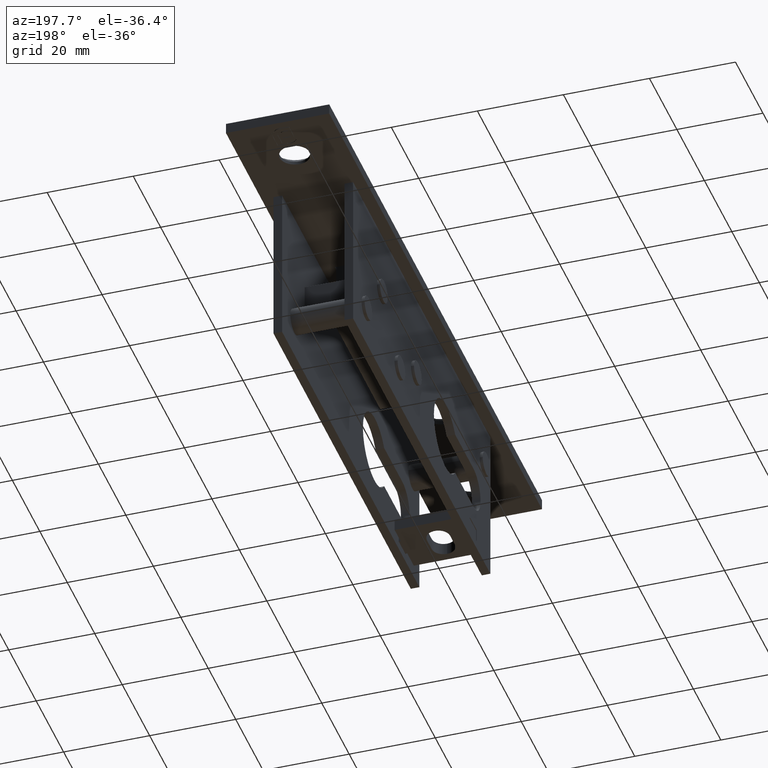
[diagram: clean part render]
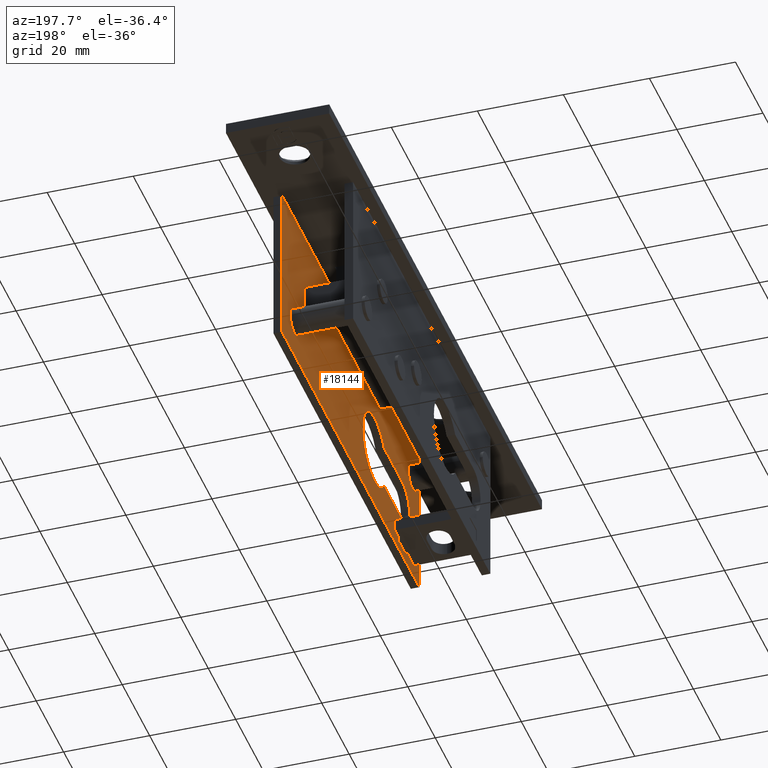
[diagram: same view with one face highlighted and labeled with its STEP entity id]
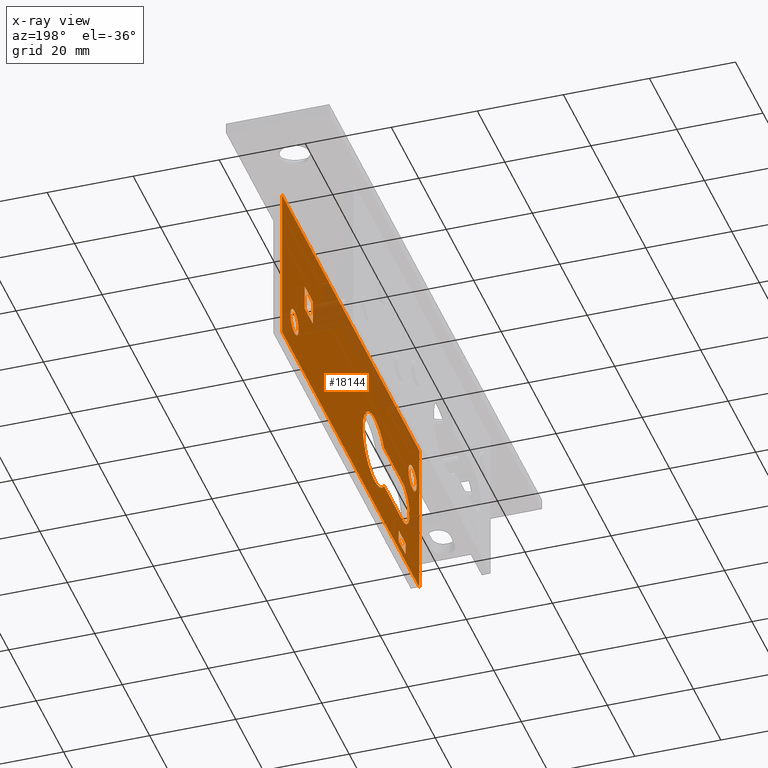
[diagram: x-ray of the same camera — body ghosted, the highlighted face saturated]
A machine part, auxiliary view. The second image highlights one B-rep face of the part: STEP entity #18144.
The next image is the same camera in x-ray: the body ghosted, the highlighted face saturated — about 16% of this face is hidden behind the body in this view.
In plain terms, the highlighted planar face has unit normal (1, -0, 0).
Its self-contained STEP definition (entity closure, byte-faithful):
#152 = CIRCLE ( 'NONE', #12427, 8.650000000000000355 ) ;
#184 = EDGE_CURVE ( 'NONE', #2701, #15351, #1096, .T. ) ;
#207 = EDGE_CURVE ( 'NONE', #1612, #3604, #4358, .T. ) ;
#322 = ORIENTED_EDGE ( 'NONE', *, *, #11432, .F. ) ;
#368 = FACE_BOUND ( 'NONE', #3559, .T. ) ;
#407 = DIRECTION ( 'NONE',  ( -1.214306433183764966E-16, -1.000000000000000000, 0.000000000000000000 ) ) ;
#410 = CARTESIAN_POINT ( 'NONE',  ( 7.250000000000009770, -36.10000000000000142, -22.50000000000000355 ) ) ;
#427 = CARTESIAN_POINT ( 'NONE',  ( 7.250000000000011546, -33.50000000000000000, -37.50000000000000000 ) ) ;
#657 = VERTEX_POINT ( 'NONE', #5468 ) ;
#837 = CARTESIAN_POINT ( 'NONE',  ( 7.250000000000022204, 51.50000000000000711, 0.000000000000000000 ) ) ;
#863 = VECTOR ( 'NONE', #14553, 1000.000000000000000 ) ;
#965 = CARTESIAN_POINT ( 'NONE',  ( 7.250000000000002665, -38.50000000000000000, -35.50000000000000000 ) ) ;
#1096 = CIRCLE ( 'NONE', #2872, 3.000000000000002665 ) ;
#1348 = CARTESIAN_POINT ( 'NONE',  ( 7.250000000000016875, 35.00000000000000000, -19.50000000000000355 ) ) ;
#1532 = CIRCLE ( 'NONE', #5693, 3.000000000000002665 ) ;
#1589 = CIRCLE ( 'NONE', #12317, 5.250000000000000888 ) ;
#1612 = VERTEX_POINT ( 'NONE', #2698 ) ;
#1798 = VERTEX_POINT ( 'NONE', #8832 ) ;
#1863 = ORIENTED_EDGE ( 'NONE', *, *, #4575, .F. ) ;
#1915 = DIRECTION ( 'NONE',  ( 0.000000000000000000, 0.000000000000000000, 1.000000000000000000 ) ) ;
#1938 = VECTOR ( 'NONE', #13416, 1000.000000000000000 ) ;
#2191 = EDGE_CURVE ( 'NONE', #12286, #15242, #7808, .T. ) ;
#2233 = VERTEX_POINT ( 'NONE', #965 ) ;
#2247 = VERTEX_POINT ( 'NONE', #7753 ) ;
#2332 = DIRECTION ( 'NONE',  ( -1.214306433183764966E-16, -1.000000000000000000, 0.000000000000000000 ) ) ;
#2486 = EDGE_LOOP ( 'NONE', ( #1863, #5505, #13505, #9110 ) ) ;
#2501 = DIRECTION ( 'NONE',  ( 0.000000000000000000, 0.000000000000000000, -1.000000000000000000 ) ) ;
#2502 = AXIS2_PLACEMENT_3D ( 'NONE', #16882, #10006, #9946 ) ;
#2605 = CARTESIAN_POINT ( 'NONE',  ( 7.250000000000022204, 51.50000000000000711, -37.50000000000000000 ) ) ;
#2635 = EDGE_LOOP ( 'NONE', ( #5516, #322, #14712, #17241 ) ) ;
#2698 = CARTESIAN_POINT ( 'NONE',  ( 7.250000000000009770, -48.50000000000000000, -37.50000000000000000 ) ) ;
#2701 = VERTEX_POINT ( 'NONE', #12048 ) ;
#2729 = DIRECTION ( 'NONE',  ( -1.000000000000000000, 1.214306433183764966E-16, -0.000000000000000000 ) ) ;
#2768 = DIRECTION ( 'NONE',  ( 1.002730332934570521E-16, 1.000000000000000000, 0.000000000000000000 ) ) ;
#2872 = AXIS2_PLACEMENT_3D ( 'NONE', #11812, #3430, #7699 ) ;
#3011 = EDGE_CURVE ( 'NONE', #11232, #4602, #11303, .T. ) ;
#3117 = ORIENTED_EDGE ( 'NONE', *, *, #9562, .F. ) ;
#3185 = CARTESIAN_POINT ( 'NONE',  ( 7.250000000000016875, 35.00000000000000000, -19.50000000000000000 ) ) ;
#3327 = EDGE_CURVE ( 'NONE', #10298, #13824, #15697, .T. ) ;
#3430 = DIRECTION ( 'NONE',  ( -1.000000000000000000, 1.214306433183764966E-16, -0.000000000000000000 ) ) ;
#3559 = EDGE_LOOP ( 'NONE', ( #5137, #3117 ) ) ;
#3601 = VERTEX_POINT ( 'NONE', #15381 ) ;
#3604 = VERTEX_POINT ( 'NONE', #8318 ) ;
#3634 = CARTESIAN_POINT ( 'NONE',  ( 7.250000000000010658, -38.49999999999999289, -37.50000000000020606 ) ) ;
#3872 = LINE ( 'NONE', #3634, #5397 ) ;
#4111 = FACE_BOUND ( 'NONE', #15836, .T. ) ;
#4126 = DIRECTION ( 'NONE',  ( 1.214306433183764966E-16, 1.000000000000000000, 0.000000000000000000 ) ) ;
#4241 = EDGE_CURVE ( 'NONE', #2247, #2233, #3872, .T. ) ;
#4313 = FACE_BOUND ( 'NONE', #2486, .T. ) ;
#4358 = LINE ( 'NONE', #13422, #17311 ) ;
#4564 = CARTESIAN_POINT ( 'NONE',  ( 7.250000000000022204, 51.50000000000000000, -32.49999999999987210 ) ) ;
#4575 = EDGE_CURVE ( 'NONE', #17969, #11221, #6252, .T. ) ;
#4602 = VERTEX_POINT ( 'NONE', #11699 ) ;
#4717 = CARTESIAN_POINT ( 'NONE',  ( 7.250000000000009770, -40.49999999999999289, -11.00000000000000000 ) ) ;
#4869 = CARTESIAN_POINT ( 'NONE',  ( 7.250000000000013323, -22.87459089691888536, -27.75000000000000355 ) ) ;
#4900 = ORIENTED_EDGE ( 'NONE', *, *, #8920, .T. ) ;
#5137 = ORIENTED_EDGE ( 'NONE', *, *, #10009, .F. ) ;
#5338 = PLANE ( 'NONE',  #7170 ) ;
#5397 = VECTOR ( 'NONE', #10428, 1000.000000000000000 ) ;
#5468 = CARTESIAN_POINT ( 'NONE',  ( 7.250000000000023981, 39.50000000000000000, -28.49999999999999645 ) ) ;
#5505 = ORIENTED_EDGE ( 'NONE', *, *, #17304, .F. ) ;
#5516 = ORIENTED_EDGE ( 'NONE', *, *, #2191, .T. ) ;
#5576 = DIRECTION ( 'NONE',  ( 0.000000000000000000, 1.000000000000000000, 0.000000000000000000 ) ) ;
#5693 = AXIS2_PLACEMENT_3D ( 'NONE', #9123, #10531, #12121 ) ;
#5939 = ORIENTED_EDGE ( 'NONE', *, *, #4241, .T. ) ;
#6095 = DIRECTION ( 'NONE',  ( 1.000000000000000000, -1.214306433183764966E-16, 0.000000000000000000 ) ) ;
#6120 = LINE ( 'NONE', #14724, #13847 ) ;
#6136 = CARTESIAN_POINT ( 'NONE',  ( 7.250000000000016875, 29.00000000000000355, -19.50000000000000000 ) ) ;
#6252 = LINE ( 'NONE', #8799, #16136 ) ;
#6423 = DIRECTION ( 'NONE',  ( 1.214306433183764966E-16, 1.000000000000000000, 0.000000000000000000 ) ) ;
#6518 = CARTESIAN_POINT ( 'NONE',  ( 7.250000000000015099, -16.00000000000000000, -22.50000000000000355 ) ) ;
#6581 = AXIS2_PLACEMENT_3D ( 'NONE', #7035, #2729, #5576 ) ;
#7035 = CARTESIAN_POINT ( 'NONE',  ( 7.250000000000023981, 42.50000000000000000, -28.49999999999999645 ) ) ;
#7170 = AXIS2_PLACEMENT_3D ( 'NONE', #2605, #8226, #4126 ) ;
#7428 = CIRCLE ( 'NONE', #6581, 3.000000000000002665 ) ;
#7699 = DIRECTION ( 'NONE',  ( 0.000000000000000000, 1.000000000000000000, 0.000000000000000000 ) ) ;
#7734 = CARTESIAN_POINT ( 'NONE',  ( 7.250000000000009770, -48.50000000000000000, 0.000000000000000000 ) ) ;
#7753 = CARTESIAN_POINT ( 'NONE',  ( 7.250000000000006217, -38.50000000000000711, -32.49999999999999289 ) ) ;
#7808 = LINE ( 'NONE', #837, #1938 ) ;
#8013 = VECTOR ( 'NONE', #11829, 1000.000000000000000 ) ;
#8226 = DIRECTION ( 'NONE',  ( 1.000000000000000000, -1.214306433183764966E-16, 0.000000000000000000 ) ) ;
#8318 = CARTESIAN_POINT ( 'NONE',  ( 7.250000000000022204, 51.50000000000000711, -37.50000000000000000 ) ) ;
#8537 = VERTEX_POINT ( 'NONE', #9506 ) ;
#8555 = CARTESIAN_POINT ( 'NONE',  ( 7.250000000000022204, 51.50000000000000711, -37.50000000000000000 ) ) ;
#8697 = LINE ( 'NONE', #13292, #11566 ) ;
#8786 = DIRECTION ( 'NONE',  ( -1.214306433183764966E-16, -1.000000000000000000, -1.387778780781444887E-15 ) ) ;
#8799 = CARTESIAN_POINT ( 'NONE',  ( 7.250000000000016875, 29.00000000000000355, -13.50000000000000178 ) ) ;
#8832 = CARTESIAN_POINT ( 'NONE',  ( 7.250000000000020428, 35.00000000000000000, -13.50000000000000533 ) ) ;
#8920 = EDGE_CURVE ( 'NONE', #13454, #8537, #13629, .T. ) ;
#9068 = DIRECTION ( 'NONE',  ( -0.000000000000000000, -0.000000000000000000, 1.000000000000000000 ) ) ;
#9110 = ORIENTED_EDGE ( 'NONE', *, *, #16093, .F. ) ;
#9123 = CARTESIAN_POINT ( 'NONE',  ( 7.250000000000009770, -43.50000000000000000, -11.00000000000000000 ) ) ;
#9506 = CARTESIAN_POINT ( 'NONE',  ( 7.250000000000015987, -7.350000000000000533, -22.50000000000000355 ) ) ;
#9549 = DIRECTION ( 'NONE',  ( 1.000000000000000000, -1.214306433183764966E-16, 0.000000000000000000 ) ) ;
#9562 = EDGE_CURVE ( 'NONE', #657, #3601, #12711, .T. ) ;
#9665 = EDGE_CURVE ( 'NONE', #2233, #11232, #9845, .T. ) ;
#9845 = LINE ( 'NONE', #13137, #863 ) ;
#9946 = DIRECTION ( 'NONE',  ( 0.000000000000000000, 1.000000000000000000, 0.000000000000000000 ) ) ;
#9997 = CARTESIAN_POINT ( 'NONE',  ( 7.250000000000006217, -36.10000000000000142, -17.25000000000000000 ) ) ;
#10006 = DIRECTION ( 'NONE',  ( -1.000000000000000000, 1.214306433183764966E-16, -0.000000000000000000 ) ) ;
#10009 = EDGE_CURVE ( 'NONE', #3601, #657, #7428, .T. ) ;
#10063 = LINE ( 'NONE', #15727, #10510 ) ;
#10223 = EDGE_CURVE ( 'NONE', #15351, #2701, #1532, .T. ) ;
#10246 = LINE ( 'NONE', #8555, #12011 ) ;
#10277 = DIRECTION ( 'NONE',  ( 1.652117596168387509E-16, 1.000000000000000000, 0.000000000000000000 ) ) ;
#10298 = VERTEX_POINT ( 'NONE', #12243 ) ;
#10428 = DIRECTION ( 'NONE',  ( 2.808647835564717055E-31, 2.312964634635741083E-15, -1.000000000000000000 ) ) ;
#10510 = VECTOR ( 'NONE', #16837, 1000.000000000000000 ) ;
#10531 = DIRECTION ( 'NONE',  ( -1.000000000000000000, 1.214306433183764966E-16, -0.000000000000000000 ) ) ;
#10601 = ORIENTED_EDGE ( 'NONE', *, *, #12357, .T. ) ;
#11221 = VERTEX_POINT ( 'NONE', #14663 ) ;
#11232 = VERTEX_POINT ( 'NONE', #14792 ) ;
#11303 = LINE ( 'NONE', #427, #8013 ) ;
#11432 = EDGE_CURVE ( 'NONE', #3604, #15242, #10246, .T. ) ;
#11566 = VECTOR ( 'NONE', #17504, 1000.000000000000000 ) ;
#11608 = ORIENTED_EDGE ( 'NONE', *, *, #10223, .F. ) ;
#11699 = CARTESIAN_POINT ( 'NONE',  ( 7.250000000000011546, -33.50000000000000000, -32.49999999999998579 ) ) ;
#11812 = CARTESIAN_POINT ( 'NONE',  ( 7.250000000000009770, -43.50000000000000000, -11.00000000000000000 ) ) ;
#11829 = DIRECTION ( 'NONE',  ( -0.000000000000000000, 0.000000000000000000, 1.000000000000000000 ) ) ;
#12011 = VECTOR ( 'NONE', #14221, 1000.000000000000000 ) ;
#12048 = CARTESIAN_POINT ( 'NONE',  ( 7.250000000000009770, -46.50000000000000000, -11.00000000000000000 ) ) ;
#12073 = CARTESIAN_POINT ( 'NONE',  ( 7.250000000000006217, -36.10000000000000142, -27.75000000000000355 ) ) ;
#12121 = DIRECTION ( 'NONE',  ( 0.000000000000000000, 1.000000000000000000, 0.000000000000000000 ) ) ;
#12131 = VECTOR ( 'NONE', #2501, 1000.000000000000000 ) ;
#12159 = CARTESIAN_POINT ( 'NONE',  ( 7.250000000000016875, 35.00000000000000000, -13.50000000000000178 ) ) ;
#12243 = CARTESIAN_POINT ( 'NONE',  ( 7.250000000000007994, -22.87459089691888181, -17.25000000000000000 ) ) ;
#12286 = VERTEX_POINT ( 'NONE', #7734 ) ;
#12317 = AXIS2_PLACEMENT_3D ( 'NONE', #410, #6095, #10277 ) ;
#12357 = EDGE_CURVE ( 'NONE', #8537, #10298, #152, .T. ) ;
#12427 = AXIS2_PLACEMENT_3D ( 'NONE', #6518, #16328, #15114 ) ;
#12573 = VERTEX_POINT ( 'NONE', #12073 ) ;
#12672 = LINE ( 'NONE', #4564, #13128 ) ;
#12711 = CIRCLE ( 'NONE', #2502, 3.000000000000002665 ) ;
#12835 = VECTOR ( 'NONE', #2332, 1000.000000000000000 ) ;
#13128 = VECTOR ( 'NONE', #8786, 1000.000000000000000 ) ;
#13137 = CARTESIAN_POINT ( 'NONE',  ( 7.250000000000022204, 51.50000000000000711, -35.50000000000000000 ) ) ;
#13292 = CARTESIAN_POINT ( 'NONE',  ( 7.250000000000022204, 51.50000000000000711, -27.75000000000000355 ) ) ;
#13374 = ORIENTED_EDGE ( 'NONE', *, *, #14394, .T. ) ;
#13416 = DIRECTION ( 'NONE',  ( 1.214306433183764966E-16, 1.000000000000000000, 0.000000000000000000 ) ) ;
#13422 = CARTESIAN_POINT ( 'NONE',  ( 7.250000000000022204, 51.50000000000000711, -37.50000000000000000 ) ) ;
#13454 = VERTEX_POINT ( 'NONE', #4869 ) ;
#13487 = EDGE_CURVE ( 'NONE', #1798, #14729, #14356, .T. ) ;
#13505 = ORIENTED_EDGE ( 'NONE', *, *, #13487, .F. ) ;
#13629 = CIRCLE ( 'NONE', #17506, 8.650000000000000355 ) ;
#13824 = VERTEX_POINT ( 'NONE', #9997 ) ;
#13847 = VECTOR ( 'NONE', #9068, 1000.000000000000000 ) ;
#14054 = ORIENTED_EDGE ( 'NONE', *, *, #184, .F. ) ;
#14055 = CARTESIAN_POINT ( 'NONE',  ( 7.250000000000022204, 51.50000000000000711, 0.000000000000000000 ) ) ;
#14198 = FACE_OUTER_BOUND ( 'NONE', #2635, .T. ) ;
#14221 = DIRECTION ( 'NONE',  ( -0.000000000000000000, -0.000000000000000000, 1.000000000000000000 ) ) ;
#14263 = CARTESIAN_POINT ( 'NONE',  ( 7.250000000000022204, 51.50000000000000711, -17.25000000000000000 ) ) ;
#14288 = ORIENTED_EDGE ( 'NONE', *, *, #3011, .T. ) ;
#14356 = LINE ( 'NONE', #12159, #12131 ) ;
#14394 = EDGE_CURVE ( 'NONE', #13824, #12573, #1589, .T. ) ;
#14409 = FACE_BOUND ( 'NONE', #15928, .T. ) ;
#14417 = EDGE_LOOP ( 'NONE', ( #5939, #15612, #14288, #15021 ) ) ;
#14553 = DIRECTION ( 'NONE',  ( 1.214306433183764966E-16, 1.000000000000000000, 0.000000000000000000 ) ) ;
#14663 = CARTESIAN_POINT ( 'NONE',  ( 7.250000000000016875, 29.00000000000000355, -13.50000000000000178 ) ) ;
#14712 = ORIENTED_EDGE ( 'NONE', *, *, #207, .F. ) ;
#14724 = CARTESIAN_POINT ( 'NONE',  ( 7.250000000000009770, -48.50000000000000000, -37.50000000000000000 ) ) ;
#14729 = VERTEX_POINT ( 'NONE', #1348 ) ;
#14792 = CARTESIAN_POINT ( 'NONE',  ( 7.250000000000006217, -33.50000000000000000, -35.50000000000000000 ) ) ;
#14888 = VECTOR ( 'NONE', #407, 1000.000000000000000 ) ;
#15021 = ORIENTED_EDGE ( 'NONE', *, *, #17367, .T. ) ;
#15114 = DIRECTION ( 'NONE',  ( 1.002730332934570521E-16, 1.000000000000000000, 0.000000000000000000 ) ) ;
#15241 = ORIENTED_EDGE ( 'NONE', *, *, #17455, .T. ) ;
#15242 = VERTEX_POINT ( 'NONE', #14055 ) ;
#15303 = FACE_BOUND ( 'NONE', #14417, .T. ) ;
#15351 = VERTEX_POINT ( 'NONE', #4717 ) ;
#15381 = CARTESIAN_POINT ( 'NONE',  ( 7.250000000000023981, 45.50000000000000711, -28.49999999999999645 ) ) ;
#15397 = EDGE_CURVE ( 'NONE', #1612, #12286, #6120, .T. ) ;
#15612 = ORIENTED_EDGE ( 'NONE', *, *, #9665, .T. ) ;
#15697 = LINE ( 'NONE', #14263, #12835 ) ;
#15727 = CARTESIAN_POINT ( 'NONE',  ( 7.250000000000016875, 35.00000000000000000, -13.50000000000000178 ) ) ;
#15836 = EDGE_LOOP ( 'NONE', ( #11608, #14054 ) ) ;
#15928 = EDGE_LOOP ( 'NONE', ( #17358, #13374, #15241, #4900, #10601 ) ) ;
#16093 = EDGE_CURVE ( 'NONE', #11221, #1798, #10063, .T. ) ;
#16136 = VECTOR ( 'NONE', #1915, 1000.000000000000000 ) ;
#16328 = DIRECTION ( 'NONE',  ( 1.000000000000000000, -1.214306433183764966E-16, 0.000000000000000000 ) ) ;
#16729 = CARTESIAN_POINT ( 'NONE',  ( 7.250000000000015099, -16.00000000000000000, -22.50000000000000355 ) ) ;
#16837 = DIRECTION ( 'NONE',  ( 1.214306433183764966E-16, 1.000000000000000000, -0.000000000000000000 ) ) ;
#16882 = CARTESIAN_POINT ( 'NONE',  ( 7.250000000000023981, 42.50000000000000000, -28.49999999999999645 ) ) ;
#17241 = ORIENTED_EDGE ( 'NONE', *, *, #15397, .T. ) ;
#17304 = EDGE_CURVE ( 'NONE', #14729, #17969, #18164, .T. ) ;
#17311 = VECTOR ( 'NONE', #6423, 1000.000000000000000 ) ;
#17358 = ORIENTED_EDGE ( 'NONE', *, *, #3327, .T. ) ;
#17367 = EDGE_CURVE ( 'NONE', #4602, #2247, #12672, .T. ) ;
#17455 = EDGE_CURVE ( 'NONE', #12573, #13454, #8697, .T. ) ;
#17504 = DIRECTION ( 'NONE',  ( 1.214306433183764966E-16, 1.000000000000000000, 0.000000000000000000 ) ) ;
#17506 = AXIS2_PLACEMENT_3D ( 'NONE', #16729, #9549, #2768 ) ;
#17969 = VERTEX_POINT ( 'NONE', #6136 ) ;
#18144 = ADVANCED_FACE ( 'NONE', ( #4111, #368, #15303, #4313, #14409, #14198 ), #5338, .F. ) ;
#18164 = LINE ( 'NONE', #3185, #14888 ) ;